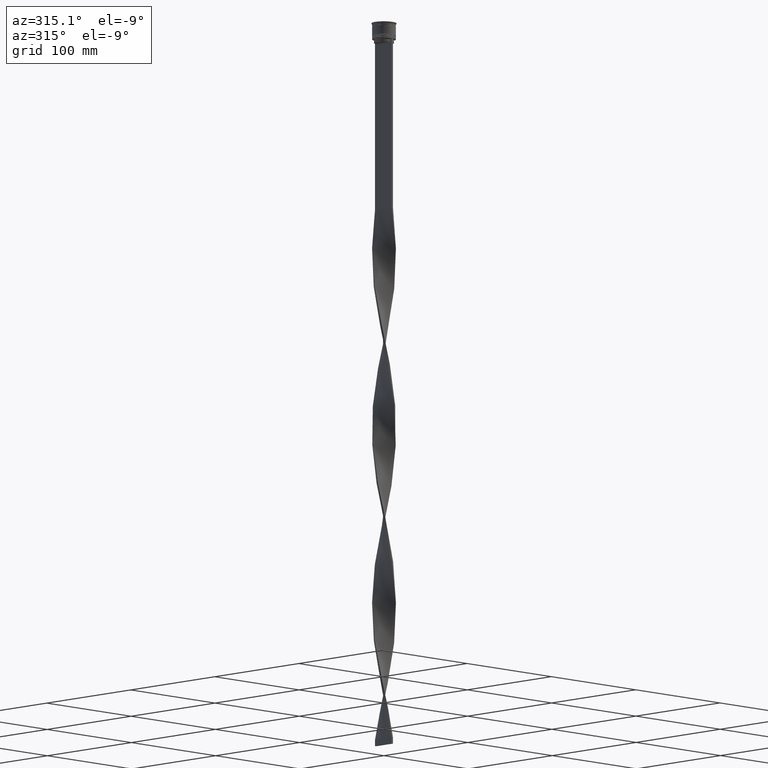
[diagram: clean part render]
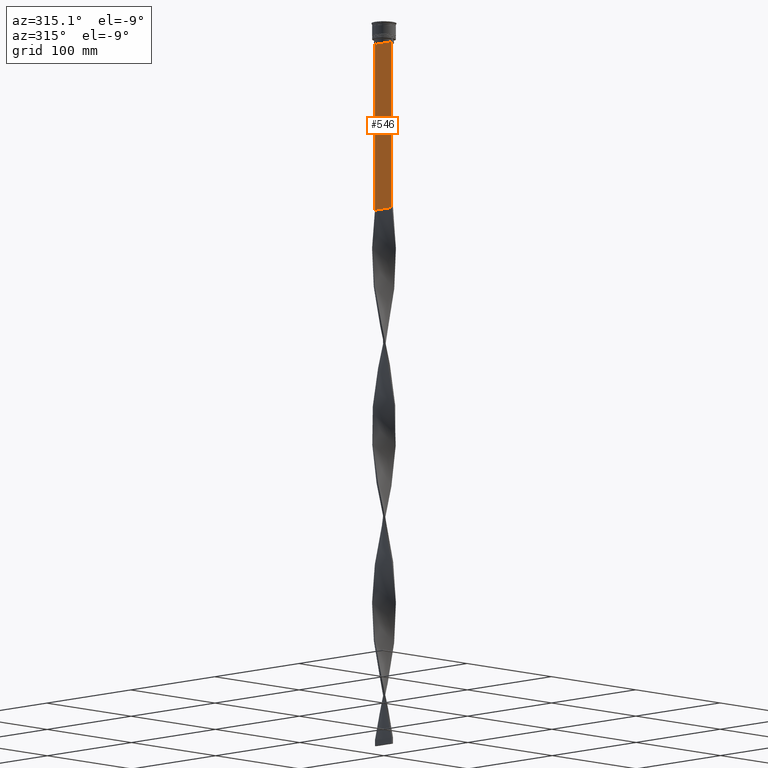
[diagram: same view with one face highlighted and labeled with its STEP entity id]
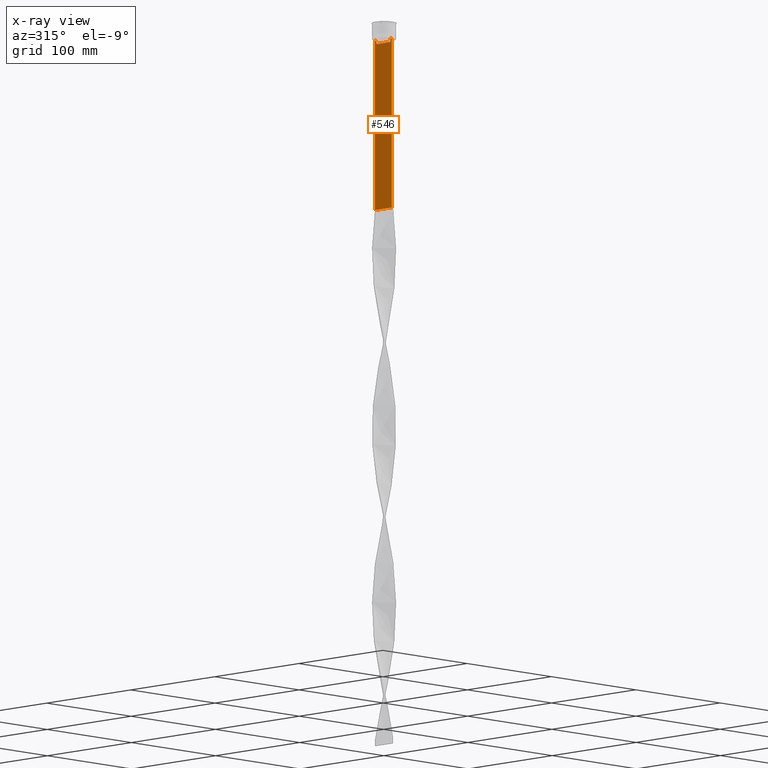
[diagram: x-ray of the same camera — body ghosted, the highlighted face saturated]
A machine part, auxiliary view. The second image highlights one B-rep face of the part: STEP entity #546.
The next image is the same camera in x-ray: the body ghosted, the highlighted face saturated — about 0% of this face is hidden behind the body in this view.
In plain terms, the highlighted planar face has unit normal (-1, 0, 0).
Its self-contained STEP definition (entity closure, byte-faithful):
#64 = CARTESIAN_POINT ( 'NONE',  ( -0.7499999999999997780, 8.366450860430608927, -14.50000000000000000 ) ) ;
#250 = VECTOR ( 'NONE', #1959, 1000.000000000000000 ) ;
#286 = VERTEX_POINT ( 'NONE', #725 ) ;
#294 = LINE ( 'NONE', #2046, #1794 ) ;
#303 = EDGE_CURVE ( 'NONE', #1219, #3489, #2514, .T. ) ;
#320 = DIRECTION ( 'NONE',  ( 0.000000000000000000, 1.000000000000000000, 0.000000000000000000 ) ) ;
#362 = AXIS2_PLACEMENT_3D ( 'NONE', #3671, #4409, #1895 ) ;
#415 = ORIENTED_EDGE ( 'NONE', *, *, #303, .F. ) ;
#464 = CARTESIAN_POINT ( 'NONE',  ( -0.7499999999999997780, -10.00000000000000533, -14.00000000000000178 ) ) ;
#473 = PLANE ( 'NONE',  #362 ) ;
#498 = ORIENTED_EDGE ( 'NONE', *, *, #1947, .F. ) ;
#530 = VERTEX_POINT ( 'NONE', #4363 ) ;
#546 = ADVANCED_FACE ( 'NONE', ( #2247 ), #473, .T. ) ;
#588 = DIRECTION ( 'NONE',  ( 0.000000000000000000, -1.000000000000000000, 0.000000000000000000 ) ) ;
#603 = VERTEX_POINT ( 'NONE', #4040 ) ;
#725 = CARTESIAN_POINT ( 'NONE',  ( -0.7499999999999997780, 9.871550030263740894, -14.00000000000000178 ) ) ;
#766 = CARTESIAN_POINT ( 'NONE',  ( -0.7499999999999997780, 9.999999999999998224, -14.00000000000000178 ) ) ;
#775 = CARTESIAN_POINT ( 'NONE',  ( -0.7499999999999997780, -8.701063080777123204, -14.16668447713511547 ) ) ;
#846 = CARTESIAN_POINT ( 'NONE',  ( -0.7499999999999997780, -10.00000000000000533, 6.056171120131581098 ) ) ;
#847 = CARTESIAN_POINT ( 'NONE',  ( -0.7499999999999997780, 8.533766897779926808, -14.33335221373273782 ) ) ;
#850 = LINE ( 'NONE', #2704, #2753 ) ;
#856 = CARTESIAN_POINT ( 'NONE',  ( -0.7499999999999997780, 8.366450860430608927, 0.000000000000000000 ) ) ;
#875 = DIRECTION ( 'NONE',  ( 0.000000000000000000, -1.000000000000000000, 0.000000000000000000 ) ) ;
#886 = B_SPLINE_CURVE_WITH_KNOTS ( 'NONE', 3,
 ( #1153, #1427, #775, #1235 ),
 .UNSPECIFIED., .F., .F.,
 ( 4, 4 ),
 ( 0.03866293624047253963, 0.03937282246709321309 ),
 .UNSPECIFIED. ) ;
#924 = LINE ( 'NONE', #3378, #3483 ) ;
#968 = LINE ( 'NONE', #2345, #3338 ) ;
#982 = ORIENTED_EDGE ( 'NONE', *, *, #3848, .F. ) ;
#1138 = CARTESIAN_POINT ( 'NONE',  ( -0.7499999999999997780, 8.701063075415252257, -14.16668448247791723 ) ) ;
#1153 = CARTESIAN_POINT ( 'NONE',  ( -0.7499999999999997780, -8.366450860430608927, -14.50000000000000000 ) ) ;
#1219 = VERTEX_POINT ( 'NONE', #3165 ) ;
#1235 = CARTESIAN_POINT ( 'NONE',  ( -0.7499999999999997780, -8.868342573446296839, -14.00000000000000178 ) ) ;
#1367 = ORIENTED_EDGE ( 'NONE', *, *, #1454, .F. ) ;
#1427 = CARTESIAN_POINT ( 'NONE',  ( -0.7499999999999997780, -8.533766903463440912, -14.33335220807192201 ) ) ;
#1432 = EDGE_CURVE ( 'NONE', #3549, #286, #924, .T. ) ;
#1440 = ORIENTED_EDGE ( 'NONE', *, *, #1432, .F. ) ;
#1454 = EDGE_CURVE ( 'NONE', #2560, #2780, #968, .T. ) ;
#1543 = EDGE_CURVE ( 'NONE', #530, #4093, #886, .T. ) ;
#1547 = DIRECTION ( 'NONE',  ( 0.000000000000000000, 0.000000000000000000, -1.000000000000000000 ) ) ;
#1550 = ORIENTED_EDGE ( 'NONE', *, *, #1543, .F. ) ;
#1562 = ORIENTED_EDGE ( 'NONE', *, *, #2817, .T. ) ;
#1715 = CARTESIAN_POINT ( 'NONE',  ( -0.7499999999999997780, -8.868342573446296839, -14.00000000000000178 ) ) ;
#1794 = VECTOR ( 'NONE', #3858, 1000.000000000000000 ) ;
#1830 = LINE ( 'NONE', #846, #3272 ) ;
#1895 = DIRECTION ( 'NONE',  ( 0.000000000000000000, 0.000000000000000000, 1.000000000000000000 ) ) ;
#1947 = EDGE_CURVE ( 'NONE', #4093, #2560, #2573, .T. ) ;
#1959 = DIRECTION ( 'NONE',  ( 0.000000000000000000, 0.000000000000000000, -1.000000000000000000 ) ) ;
#2002 = ORIENTED_EDGE ( 'NONE', *, *, #4012, .F. ) ;
#2046 = CARTESIAN_POINT ( 'NONE',  ( -0.7499999999999997780, -8.366450860430608927, 0.000000000000000000 ) ) ;
#2093 = VECTOR ( 'NONE', #320, 1000.000000000000000 ) ;
#2208 = EDGE_CURVE ( 'NONE', #2780, #3263, #1830, .T. ) ;
#2247 = FACE_OUTER_BOUND ( 'NONE', #3044, .T. ) ;
#2324 = DIRECTION ( 'NONE',  ( 0.000000000000000000, -1.000000000000000000, 0.000000000000000000 ) ) ;
#2345 = CARTESIAN_POINT ( 'NONE',  ( -0.7499999999999997780, -10.00000000000000533, -14.00000000000000178 ) ) ;
#2514 = LINE ( 'NONE', #2839, #3479 ) ;
#2522 = CARTESIAN_POINT ( 'NONE',  ( -0.7499999999999997780, 9.999999999999998224, -157.9999999999999716 ) ) ;
#2560 = VERTEX_POINT ( 'NONE', #3933 ) ;
#2573 = LINE ( 'NONE', #464, #3847 ) ;
#2600 = LINE ( 'NONE', #856, #250 ) ;
#2656 = CARTESIAN_POINT ( 'NONE',  ( -0.7499999999999997780, 9.999999999999998224, 6.056171120131581098 ) ) ;
#2704 = CARTESIAN_POINT ( 'NONE',  ( -0.7499999999999997780, -10.00000000000000533, -14.00000000000000178 ) ) ;
#2753 = VECTOR ( 'NONE', #2324, 1000.000000000000000 ) ;
#2764 = EDGE_CURVE ( 'NONE', #286, #603, #850, .T. ) ;
#2780 = VERTEX_POINT ( 'NONE', #3061 ) ;
#2785 = ORIENTED_EDGE ( 'NONE', *, *, #2764, .F. ) ;
#2817 = EDGE_CURVE ( 'NONE', #3549, #4426, #3334, .T. ) ;
#2825 = VECTOR ( 'NONE', #2963, 1000.000000000000000 ) ;
#2839 = CARTESIAN_POINT ( 'NONE',  ( -0.7499999999999997780, 8.400000000000003908, -17.00000000000000000 ) ) ;
#2904 = EDGE_CURVE ( 'NONE', #3489, #530, #294, .T. ) ;
#2963 = DIRECTION ( 'NONE',  ( 0.000000000000000000, 0.000000000000000000, -1.000000000000000000 ) ) ;
#3044 = EDGE_LOOP ( 'NONE', ( #982, #2785, #1440, #1562, #2002, #4436, #1367, #498, #1550, #4111, #415, #3206 ) ) ;
#3061 = CARTESIAN_POINT ( 'NONE',  ( -0.7499999999999997780, -10.00000000000000533, -14.00000000000000178 ) ) ;
#3165 = CARTESIAN_POINT ( 'NONE',  ( -0.7499999999999997780, 8.366450860430608927, -17.00000000000000000 ) ) ;
#3179 = CARTESIAN_POINT ( 'NONE',  ( -0.7499999999999997780, 8.868342573446296839, -14.00000000000000178 ) ) ;
#3197 = CARTESIAN_POINT ( 'NONE',  ( -0.7499999999999998890, -10.00000000000000533, -157.9999999999999716 ) ) ;
#3206 = ORIENTED_EDGE ( 'NONE', *, *, #3669, .F. ) ;
#3232 = CARTESIAN_POINT ( 'NONE',  ( -0.7499999999999997780, -8.366450860430608927, -17.00000000000000000 ) ) ;
#3263 = VERTEX_POINT ( 'NONE', #3197 ) ;
#3272 = VECTOR ( 'NONE', #1547, 1000.000000000000000 ) ;
#3334 = LINE ( 'NONE', #2656, #2825 ) ;
#3338 = VECTOR ( 'NONE', #4394, 1000.000000000000000 ) ;
#3378 = CARTESIAN_POINT ( 'NONE',  ( -0.7499999999999997780, -10.00000000000000533, -14.00000000000000178 ) ) ;
#3479 = VECTOR ( 'NONE', #4233, 1000.000000000000000 ) ;
#3483 = VECTOR ( 'NONE', #588, 1000.000000000000000 ) ;
#3489 = VERTEX_POINT ( 'NONE', #3232 ) ;
#3530 = VERTEX_POINT ( 'NONE', #3912 ) ;
#3537 = LINE ( 'NONE', #3901, #2093 ) ;
#3549 = VERTEX_POINT ( 'NONE', #766 ) ;
#3669 = EDGE_CURVE ( 'NONE', #3530, #1219, #2600, .T. ) ;
#3671 = CARTESIAN_POINT ( 'NONE',  ( -0.7499999999999997780, -10.00000000000000533, 6.056171120131581098 ) ) ;
#3847 = VECTOR ( 'NONE', #875, 1000.000000000000000 ) ;
#3848 = EDGE_CURVE ( 'NONE', #603, #3530, #3856, .T. ) ;
#3856 = B_SPLINE_CURVE_WITH_KNOTS ( 'NONE', 3,
 ( #3179, #1138, #847, #64 ),
 .UNSPECIFIED., .F., .F.,
 ( 4, 4 ),
 ( 0.01512225952876174867, 0.01583070519299695222 ),
 .UNSPECIFIED. ) ;
#3858 = DIRECTION ( 'NONE',  ( -0.000000000000000000, -0.000000000000000000, 1.000000000000000000 ) ) ;
#3901 = CARTESIAN_POINT ( 'NONE',  ( -0.7499999999999997780, -10.00000000000000533, -157.9999999999999716 ) ) ;
#3912 = CARTESIAN_POINT ( 'NONE',  ( -0.7499999999999997780, 8.366450860430608927, -14.50000000000000000 ) ) ;
#3933 = CARTESIAN_POINT ( 'NONE',  ( -0.7499999999999997780, -9.871550030263740894, -14.00000000000000178 ) ) ;
#4012 = EDGE_CURVE ( 'NONE', #3263, #4426, #3537, .T. ) ;
#4040 = CARTESIAN_POINT ( 'NONE',  ( -0.7499999999999997780, 8.868342573446296839, -14.00000000000000178 ) ) ;
#4093 = VERTEX_POINT ( 'NONE', #1715 ) ;
#4111 = ORIENTED_EDGE ( 'NONE', *, *, #2904, .F. ) ;
#4233 = DIRECTION ( 'NONE',  ( 0.000000000000000000, -1.000000000000000000, 0.000000000000000000 ) ) ;
#4363 = CARTESIAN_POINT ( 'NONE',  ( -0.7499999999999997780, -8.366450860430608927, -14.50000000000000000 ) ) ;
#4394 = DIRECTION ( 'NONE',  ( 0.000000000000000000, -1.000000000000000000, 0.000000000000000000 ) ) ;
#4409 = DIRECTION ( 'NONE',  ( -1.000000000000000000, 0.000000000000000000, 0.000000000000000000 ) ) ;
#4426 = VERTEX_POINT ( 'NONE', #2522 ) ;
#4436 = ORIENTED_EDGE ( 'NONE', *, *, #2208, .F. ) ;